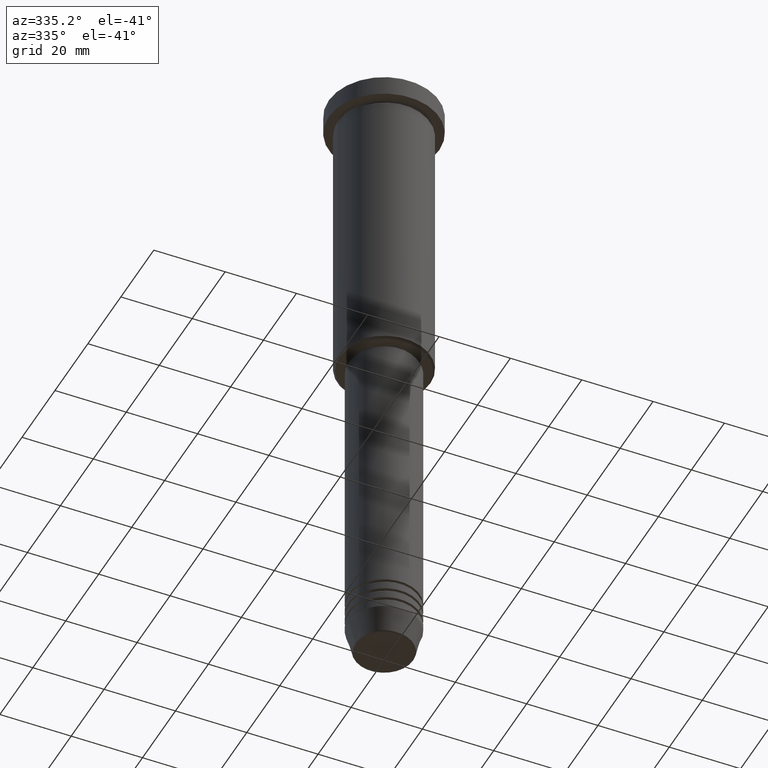
[diagram: clean part render]
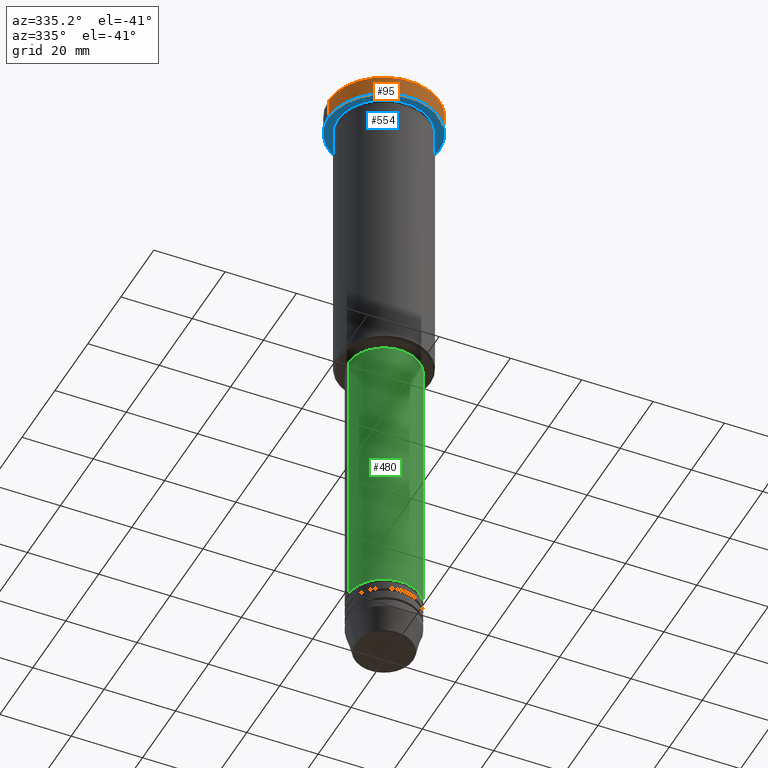
[diagram: same view with three faces highlighted in distinct colors, each labeled with its STEP entity id]
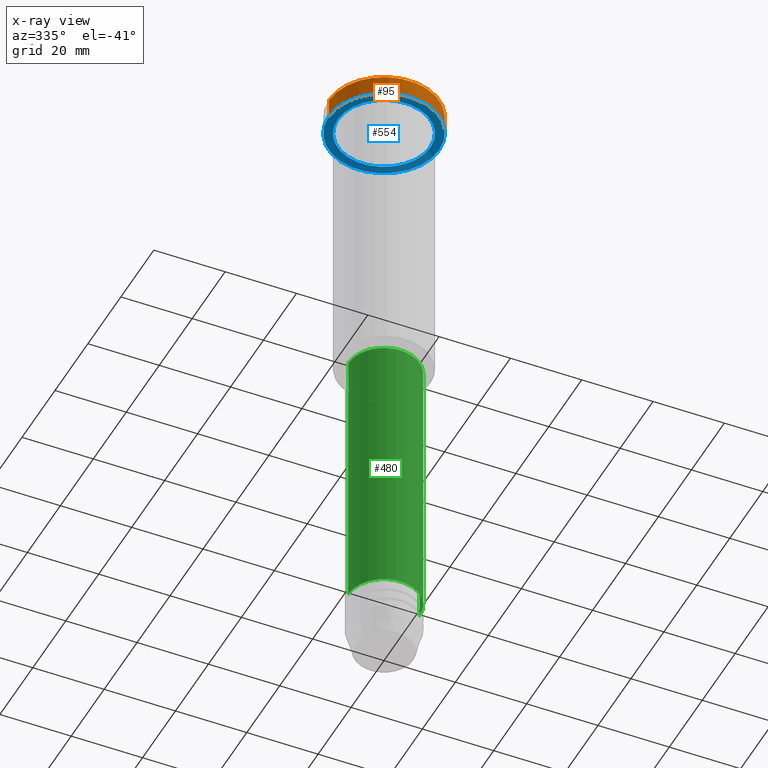
[diagram: x-ray of the same camera — body ghosted, the three highlighted faces saturated]
A machine part, auxiliary view with three faces highlighted in distinct colors.
The next image is the same camera in x-ray (body ghosted, the three faces saturated) — at least one of them is partly hidden behind the body in this view.
Their STEP definitions:

[orange] entity #95 — the highlighted cylindrical surface (partial cylindrical patch) has radius 15.5 mm, axis along (-0, -0, 1).
#70 = VECTOR ( 'NONE', #744, 1000.000000000000000 ) ;
#95 = ADVANCED_FACE ( 'NONE', ( #561 ), #917, .T. ) ;
#126 = LINE ( 'NONE', #1031, #70 ) ;
#140 = AXIS2_PLACEMENT_3D ( 'NONE', #409, #144, #1051 ) ;
#144 = DIRECTION ( 'NONE',  ( -0.000000000000000000, -0.000000000000000000, 1.000000000000000000 ) ) ;
#223 = CARTESIAN_POINT ( 'NONE',  ( 15.50000000000000000, 0.000000000000000000, -0.5000000000000125455 ) ) ;
#232 = EDGE_CURVE ( 'NONE', #952, #654, #1155, .T. ) ;
#258 = VERTEX_POINT ( 'NONE', #223 ) ;
#273 = LINE ( 'NONE', #814, #749 ) ;
#318 = VERTEX_POINT ( 'NONE', #544 ) ;
#327 = AXIS2_PLACEMENT_3D ( 'NONE', #467, #1020, #1171 ) ;
#393 = ORIENTED_EDGE ( 'NONE', *, *, #914, .F. ) ;
#409 = CARTESIAN_POINT ( 'NONE',  ( 0.000000000000000000, 0.000000000000000000, -5.999999999999995559 ) ) ;
#445 = ORIENTED_EDGE ( 'NONE', *, *, #232, .T. ) ;
#467 = CARTESIAN_POINT ( 'NONE',  ( 0.000000000000000000, 0.000000000000000000, 0.000000000000000000 ) ) ;
#528 = AXIS2_PLACEMENT_3D ( 'NONE', #1132, #757, #771 ) ;
#544 = CARTESIAN_POINT ( 'NONE',  ( -15.50000000000000000, 1.898202538678397557E-15, -0.5000000000000125455 ) ) ;
#561 = FACE_OUTER_BOUND ( 'NONE', #994, .T. ) ;
#589 = CARTESIAN_POINT ( 'NONE',  ( 15.50000000000000000, 0.000000000000000000, -5.999999999999995559 ) ) ;
#651 = EDGE_CURVE ( 'NONE', #654, #258, #126, .T. ) ;
#654 = VERTEX_POINT ( 'NONE', #589 ) ;
#673 = EDGE_CURVE ( 'NONE', #258, #318, #1043, .T. ) ;
#744 = DIRECTION ( 'NONE',  ( -0.000000000000000000, -0.000000000000000000, 1.000000000000000000 ) ) ;
#749 = VECTOR ( 'NONE', #993, 1000.000000000000000 ) ;
#757 = DIRECTION ( 'NONE',  ( 0.000000000000000000, 0.000000000000000000, -1.000000000000000000 ) ) ;
#771 = DIRECTION ( 'NONE',  ( 1.000000000000000000, 0.000000000000000000, 0.000000000000000000 ) ) ;
#814 = CARTESIAN_POINT ( 'NONE',  ( -15.50000000000000000, 1.898202538678397557E-15, 0.000000000000000000 ) ) ;
#838 = ORIENTED_EDGE ( 'NONE', *, *, #673, .T. ) ;
#914 = EDGE_CURVE ( 'NONE', #952, #318, #273, .T. ) ;
#917 = CYLINDRICAL_SURFACE ( 'NONE', #327, 15.50000000000000000 ) ;
#952 = VERTEX_POINT ( 'NONE', #1090 ) ;
#973 = ORIENTED_EDGE ( 'NONE', *, *, #651, .T. ) ;
#993 = DIRECTION ( 'NONE',  ( -0.000000000000000000, -0.000000000000000000, 1.000000000000000000 ) ) ;
#994 = EDGE_LOOP ( 'NONE', ( #393, #445, #973, #838 ) ) ;
#1020 = DIRECTION ( 'NONE',  ( -0.000000000000000000, -0.000000000000000000, 1.000000000000000000 ) ) ;
#1031 = CARTESIAN_POINT ( 'NONE',  ( 15.50000000000000000, 0.000000000000000000, 0.000000000000000000 ) ) ;
#1043 = CIRCLE ( 'NONE', #528, 15.50000000000000000 ) ;
#1051 = DIRECTION ( 'NONE',  ( 1.000000000000000000, 0.000000000000000000, 0.000000000000000000 ) ) ;
#1090 = CARTESIAN_POINT ( 'NONE',  ( -15.50000000000000000, 1.898202538678397557E-15, -5.999999999999995559 ) ) ;
#1132 = CARTESIAN_POINT ( 'NONE',  ( 0.000000000000000000, 0.000000000000000000, -0.5000000000000125455 ) ) ;
#1155 = CIRCLE ( 'NONE', #140, 15.50000000000000000 ) ;
#1171 = DIRECTION ( 'NONE',  ( 1.000000000000000000, 0.000000000000000000, 0.000000000000000000 ) ) ;

[blue] entity #554 — the highlighted planar face has unit normal (0, 0, -1).
#124 = AXIS2_PLACEMENT_3D ( 'NONE', #203, #359, #189 ) ;
#140 = AXIS2_PLACEMENT_3D ( 'NONE', #409, #144, #1051 ) ;
#144 = DIRECTION ( 'NONE',  ( -0.000000000000000000, -0.000000000000000000, 1.000000000000000000 ) ) ;
#167 = AXIS2_PLACEMENT_3D ( 'NONE', #607, #881, #515 ) ;
#189 = DIRECTION ( 'NONE',  ( -1.000000000000000000, 0.000000000000000000, 0.000000000000000000 ) ) ;
#203 = CARTESIAN_POINT ( 'NONE',  ( 0.000000000000000000, 0.000000000000000000, -5.999999999999995559 ) ) ;
#232 = EDGE_CURVE ( 'NONE', #952, #654, #1155, .T. ) ;
#322 = CARTESIAN_POINT ( 'NONE',  ( 13.00000000000000000, 1.592040838891559095E-15, -5.999999999999994671 ) ) ;
#328 = DIRECTION ( 'NONE',  ( 1.000000000000000000, 0.000000000000000000, 0.000000000000000000 ) ) ;
#359 = DIRECTION ( 'NONE',  ( -0.000000000000000000, -0.000000000000000000, 1.000000000000000000 ) ) ;
#362 = PLANE ( 'NONE',  #1023 ) ;
#376 = FACE_OUTER_BOUND ( 'NONE', #1162, .T. ) ;
#409 = CARTESIAN_POINT ( 'NONE',  ( 0.000000000000000000, 0.000000000000000000, -5.999999999999995559 ) ) ;
#416 = ORIENTED_EDGE ( 'NONE', *, *, #232, .F. ) ;
#448 = DIRECTION ( 'NONE',  ( -1.000000000000000000, 0.000000000000000000, -0.000000000000000000 ) ) ;
#459 = FACE_BOUND ( 'NONE', #625, .T. ) ;
#475 = EDGE_CURVE ( 'NONE', #801, #700, #550, .T. ) ;
#487 = CIRCLE ( 'NONE', #167, 13.00000000000000000 ) ;
#515 = DIRECTION ( 'NONE',  ( -1.000000000000000000, 0.000000000000000000, 0.000000000000000000 ) ) ;
#522 = DIRECTION ( 'NONE',  ( -0.000000000000000000, -0.000000000000000000, 1.000000000000000000 ) ) ;
#550 = CIRCLE ( 'NONE', #124, 13.00000000000000000 ) ;
#554 = ADVANCED_FACE ( 'NONE', ( #459, #376 ), #362, .T. ) ;
#589 = CARTESIAN_POINT ( 'NONE',  ( 15.50000000000000000, 0.000000000000000000, -5.999999999999995559 ) ) ;
#607 = CARTESIAN_POINT ( 'NONE',  ( 0.000000000000000000, 0.000000000000000000, -5.999999999999995559 ) ) ;
#625 = EDGE_LOOP ( 'NONE', ( #923, #685 ) ) ;
#634 = CARTESIAN_POINT ( 'NONE',  ( 0.000000000000000000, 15.50000000000000000, -5.999999999999995559 ) ) ;
#654 = VERTEX_POINT ( 'NONE', #589 ) ;
#685 = ORIENTED_EDGE ( 'NONE', *, *, #475, .T. ) ;
#700 = VERTEX_POINT ( 'NONE', #859 ) ;
#768 = AXIS2_PLACEMENT_3D ( 'NONE', #796, #522, #328 ) ;
#793 = EDGE_CURVE ( 'NONE', #654, #952, #865, .T. ) ;
#796 = CARTESIAN_POINT ( 'NONE',  ( 0.000000000000000000, 0.000000000000000000, -5.999999999999995559 ) ) ;
#801 = VERTEX_POINT ( 'NONE', #322 ) ;
#842 = EDGE_CURVE ( 'NONE', #700, #801, #487, .T. ) ;
#859 = CARTESIAN_POINT ( 'NONE',  ( -13.00000000000000000, 0.000000000000000000, -5.999999999999994671 ) ) ;
#865 = CIRCLE ( 'NONE', #768, 15.50000000000000000 ) ;
#881 = DIRECTION ( 'NONE',  ( -0.000000000000000000, -0.000000000000000000, 1.000000000000000000 ) ) ;
#923 = ORIENTED_EDGE ( 'NONE', *, *, #842, .T. ) ;
#952 = VERTEX_POINT ( 'NONE', #1090 ) ;
#964 = ORIENTED_EDGE ( 'NONE', *, *, #793, .F. ) ;
#1023 = AXIS2_PLACEMENT_3D ( 'NONE', #634, #1096, #448 ) ;
#1051 = DIRECTION ( 'NONE',  ( 1.000000000000000000, 0.000000000000000000, 0.000000000000000000 ) ) ;
#1090 = CARTESIAN_POINT ( 'NONE',  ( -15.50000000000000000, 1.898202538678397557E-15, -5.999999999999995559 ) ) ;
#1096 = DIRECTION ( 'NONE',  ( 0.000000000000000000, 0.000000000000000000, -1.000000000000000000 ) ) ;
#1155 = CIRCLE ( 'NONE', #140, 15.50000000000000000 ) ;
#1162 = EDGE_LOOP ( 'NONE', ( #964, #416 ) ) ;

[green] entity #480 — the highlighted cylindrical surface (partial cylindrical patch) has radius 10 mm, axis along (-0, -0, 1).
#12 = DIRECTION ( 'NONE',  ( 1.000000000000000000, 0.000000000000000000, 0.000000000000000000 ) ) ;
#22 = DIRECTION ( 'NONE',  ( -0.000000000000000000, -0.000000000000000000, 1.000000000000000000 ) ) ;
#36 = LINE ( 'NONE', #1130, #658 ) ;
#86 = CYLINDRICAL_SURFACE ( 'NONE', #823, 10.00000000000000000 ) ;
#137 = ORIENTED_EDGE ( 'NONE', *, *, #582, .T. ) ;
#152 = EDGE_LOOP ( 'NONE', ( #1181, #967, #137, #325 ) ) ;
#188 = CARTESIAN_POINT ( 'NONE',  ( 0.000000000000000000, 0.000000000000000000, -87.00000000000002842 ) ) ;
#224 = VERTEX_POINT ( 'NONE', #961 ) ;
#266 = CARTESIAN_POINT ( 'NONE',  ( 10.00000000000000000, 0.000000000000000000, -87.00000000000002842 ) ) ;
#268 = DIRECTION ( 'NONE',  ( -0.000000000000000000, -0.000000000000000000, 1.000000000000000000 ) ) ;
#274 = LINE ( 'NONE', #915, #884 ) ;
#280 = DIRECTION ( 'NONE',  ( -0.000000000000000000, -0.000000000000000000, 1.000000000000000000 ) ) ;
#288 = VERTEX_POINT ( 'NONE', #300 ) ;
#299 = VERTEX_POINT ( 'NONE', #266 ) ;
#300 = CARTESIAN_POINT ( 'NONE',  ( 10.00000000000000000, 0.000000000000000000, -164.9999999999999716 ) ) ;
#325 = ORIENTED_EDGE ( 'NONE', *, *, #962, .F. ) ;
#451 = AXIS2_PLACEMENT_3D ( 'NONE', #1113, #22, #1035 ) ;
#480 = ADVANCED_FACE ( 'NONE', ( #730 ), #86, .T. ) ;
#582 = EDGE_CURVE ( 'NONE', #288, #299, #274, .T. ) ;
#648 = DIRECTION ( 'NONE',  ( -0.000000000000000000, -0.000000000000000000, 1.000000000000000000 ) ) ;
#658 = VECTOR ( 'NONE', #950, 1000.000000000000000 ) ;
#721 = DIRECTION ( 'NONE',  ( 1.000000000000000000, 0.000000000000000000, 0.000000000000000000 ) ) ;
#730 = FACE_OUTER_BOUND ( 'NONE', #152, .T. ) ;
#823 = AXIS2_PLACEMENT_3D ( 'NONE', #1106, #280, #721 ) ;
#847 = CIRCLE ( 'NONE', #983, 10.00000000000000000 ) ;
#884 = VECTOR ( 'NONE', #648, 1000.000000000000000 ) ;
#910 = CARTESIAN_POINT ( 'NONE',  ( -10.00000000000000000, 1.224646799147353256E-15, -87.00000000000002842 ) ) ;
#915 = CARTESIAN_POINT ( 'NONE',  ( 10.00000000000000000, 0.000000000000000000, 0.000000000000000000 ) ) ;
#950 = DIRECTION ( 'NONE',  ( -0.000000000000000000, -0.000000000000000000, 1.000000000000000000 ) ) ;
#961 = CARTESIAN_POINT ( 'NONE',  ( -10.00000000000000000, 1.224646799147353256E-15, -164.9999999999999716 ) ) ;
#962 = EDGE_CURVE ( 'NONE', #979, #299, #847, .T. ) ;
#967 = ORIENTED_EDGE ( 'NONE', *, *, #1138, .T. ) ;
#979 = VERTEX_POINT ( 'NONE', #910 ) ;
#983 = AXIS2_PLACEMENT_3D ( 'NONE', #188, #268, #12 ) ;
#1035 = DIRECTION ( 'NONE',  ( 1.000000000000000000, 0.000000000000000000, 0.000000000000000000 ) ) ;
#1046 = CIRCLE ( 'NONE', #451, 10.00000000000000000 ) ;
#1098 = EDGE_CURVE ( 'NONE', #224, #979, #36, .T. ) ;
#1106 = CARTESIAN_POINT ( 'NONE',  ( 0.000000000000000000, 0.000000000000000000, 0.000000000000000000 ) ) ;
#1113 = CARTESIAN_POINT ( 'NONE',  ( 0.000000000000000000, 0.000000000000000000, -164.9999999999999716 ) ) ;
#1130 = CARTESIAN_POINT ( 'NONE',  ( -10.00000000000000000, 1.224646799147353256E-15, 0.000000000000000000 ) ) ;
#1138 = EDGE_CURVE ( 'NONE', #224, #288, #1046, .T. ) ;
#1181 = ORIENTED_EDGE ( 'NONE', *, *, #1098, .F. ) ;